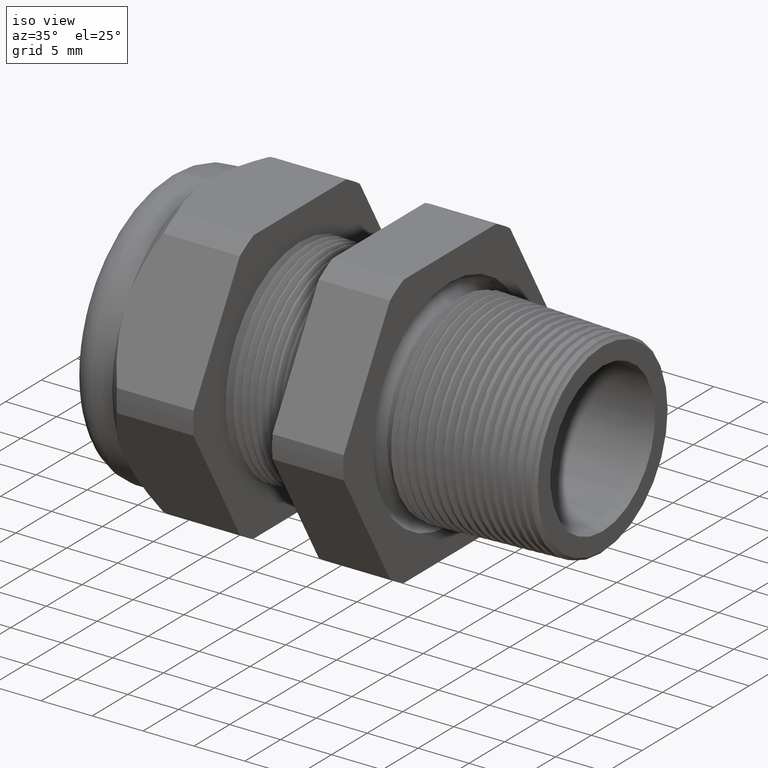
[diagram: clean part render]
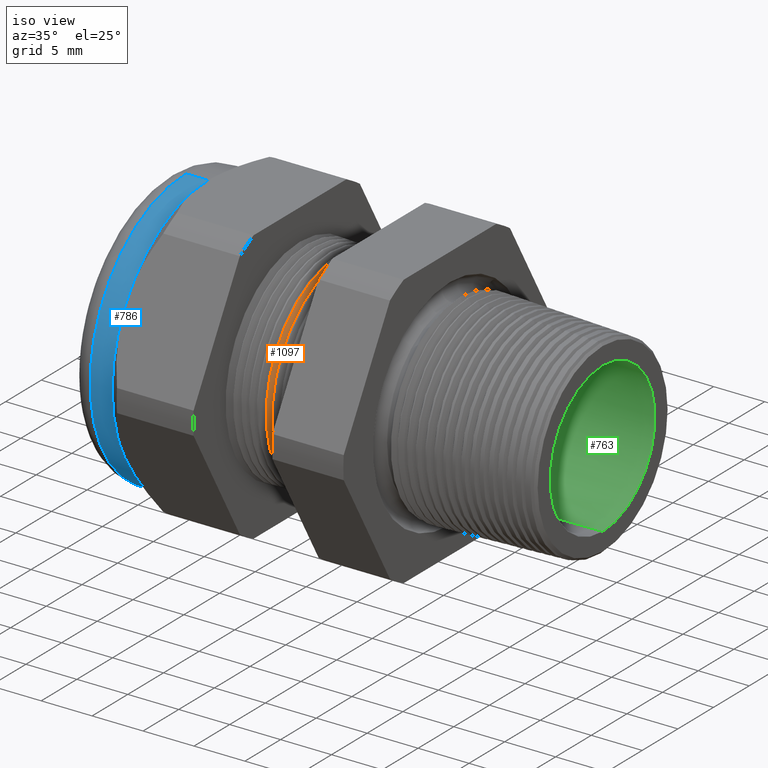
[diagram: same view with three faces highlighted in distinct colors, each labeled with its STEP entity id]
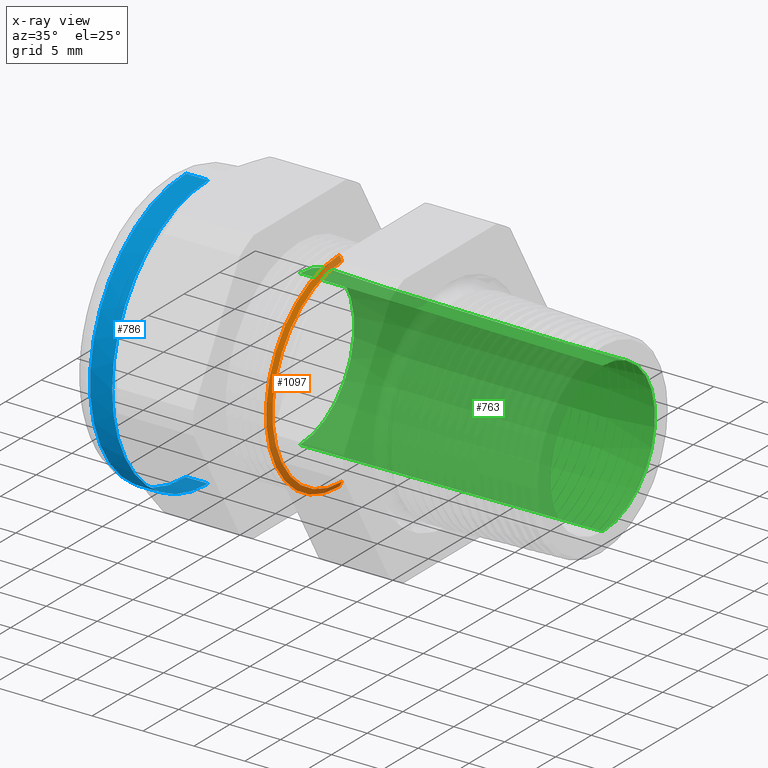
[diagram: x-ray of the same camera — body ghosted, the three highlighted faces saturated]
A machine part, iso view with three faces highlighted in distinct colors.
The next image is the same camera in x-ray (body ghosted, the three faces saturated) — at least one of them is partly hidden behind the body in this view.
Their STEP definitions:

[orange] entity #1097 — the highlighted conical surface has half-angle 62 deg.
#66 = VERTEX_POINT ( 'NONE', #2091 ) ;
#72 = EDGE_CURVE ( 'NONE', #1901, #73, #2086, .T. ) ;
#73 = VERTEX_POINT ( 'NONE', #2082 ) ;
#119 = EDGE_CURVE ( 'NONE', #1966, #66, #2178, .T. ) ;
#531 = EDGE_CURVE ( 'NONE', #66, #73, #2920, .T. ) ;
#1097 = ADVANCED_FACE ( 'NONE', ( #3938 ), #3933, .T. ) ;
#1098 = EDGE_LOOP ( 'NONE', ( #1099, #1100, #1102, #1103 ) ) ;
#1099 = ORIENTED_EDGE ( 'NONE', *, *, #72, .F. ) ;
#1100 = ORIENTED_EDGE ( 'NONE', *, *, #1101, .F. ) ;
#1101 = EDGE_CURVE ( 'NONE', #1966, #1901, #3927, .T. ) ;
#1102 = ORIENTED_EDGE ( 'NONE', *, *, #119, .T. ) ;
#1103 = ORIENTED_EDGE ( 'NONE', *, *, #531, .T. ) ;
#1901 = VERTEX_POINT ( 'NONE', #5338 ) ;
#1966 = VERTEX_POINT ( 'NONE', #5376 ) ;
#2082 = CARTESIAN_POINT ( 'NONE',  ( -0.7374771129433930200, 4.957090523884741100E-017, -0.4046627847513250600 ) ) ;
#2083 = DIRECTION ( 'NONE',  ( -0.4694715627859021900, 1.081298943409537900E-016, -0.8829475928589208800 ) ) ;
#2084 = VECTOR ( 'NONE', #2083, 39.37007874015748100 ) ;
#2085 = CARTESIAN_POINT ( 'NONE',  ( -0.7403149606299210800, 5.021051876504148100E-017, -0.4099999999999999800 ) ) ;
#2086 = LINE ( 'NONE', #2085, #2084 ) ;
#2091 = CARTESIAN_POINT ( 'NONE',  ( -0.7374771129433930200, 0.0000000000000000000, 0.4046627847513250600 ) ) ;
#2175 = DIRECTION ( 'NONE',  ( -0.4694715627859021900, 0.0000000000000000000, 0.8829475928589208800 ) ) ;
#2176 = VECTOR ( 'NONE', #2175, 39.37007874015748100 ) ;
#2177 = CARTESIAN_POINT ( 'NONE',  ( -0.7403149606299210800, 0.0000000000000000000, 0.4099999999999999800 ) ) ;
#2178 = LINE ( 'NONE', #2177, #2176 ) ;
#2917 = DIRECTION ( 'NONE',  ( 0.0000000000000000000, 0.0000000000000000000, 1.000000000000000000 ) ) ;
#2918 = DIRECTION ( 'NONE',  ( 1.000000000000000000, 0.0000000000000000000, 0.0000000000000000000 ) ) ;
#2919 = AXIS2_PLACEMENT_3D ( 'NONE', #2925, #2918, #2917 ) ;
#2920 = CIRCLE ( 'NONE', #2919, 0.4046627847513250600 ) ;
#2925 = CARTESIAN_POINT ( 'NONE',  ( -0.7374771129433930200, 0.0000000000000000000, 0.0000000000000000000 ) ) ;
#3924 = DIRECTION ( 'NONE',  ( 0.0000000000000000000, 0.0000000000000000000, -1.000000000000000000 ) ) ;
#3925 = DIRECTION ( 'NONE',  ( 1.000000000000000000, 0.0000000000000000000, 0.0000000000000000000 ) ) ;
#3926 = AXIS2_PLACEMENT_3D ( 'NONE', #3932, #3925, #3924 ) ;
#3927 = CIRCLE ( 'NONE', #3926, 0.3845114984791284100 ) ;
#3928 = DIRECTION ( 'NONE',  ( 0.0000000000000000000, 0.0000000000000000000, 1.000000000000000000 ) ) ;
#3929 = DIRECTION ( 'NONE',  ( -1.000000000000000000, 0.0000000000000000000, 0.0000000000000000000 ) ) ;
#3930 = CARTESIAN_POINT ( 'NONE',  ( -0.7403149606299210800, 0.0000000000000000000, 0.0000000000000000000 ) ) ;
#3931 = AXIS2_PLACEMENT_3D ( 'NONE', #3930, #3929, #3928 ) ;
#3932 = CARTESIAN_POINT ( 'NONE',  ( -0.7267624839723553200, 0.0000000000000000000, 0.0000000000000000000 ) ) ;
#3933 = CONICAL_SURFACE ( 'NONE', #3931, 0.4099999999999999800, 1.082104136236471400 ) ;
#3938 = FACE_OUTER_BOUND ( 'NONE', #1098, .T. ) ;
#5338 = CARTESIAN_POINT ( 'NONE',  ( -0.7267624839723553200, 4.832298799637908300E-017, -0.3845114984791284100 ) ) ;
#5376 = CARTESIAN_POINT ( 'NONE',  ( -0.7267624839723553200, 0.0000000000000000000, 0.3845114984791284100 ) ) ;

[blue] entity #786 — the highlighted cylindrical surface (partial cylindrical patch) has radius 13.462 mm, axis along (1, 0, 0).
#28 = EDGE_CURVE ( 'NONE', #5588, #32, #1983, .T. ) ;
#32 = VERTEX_POINT ( 'NONE', #1973 ) ;
#51 = VERTEX_POINT ( 'NONE', #2059 ) ;
#55 = EDGE_CURVE ( 'NONE', #5581, #51, #2054, .T. ) ;
#597 = VERTEX_POINT ( 'NONE', #3083 ) ;
#648 = VERTEX_POINT ( 'NONE', #3204 ) ;
#768 = ORIENTED_EDGE ( 'NONE', *, *, #769, .F. ) ;
#769 = EDGE_CURVE ( 'NONE', #648, #597, #3500, .T. ) ;
#770 = ORIENTED_EDGE ( 'NONE', *, *, #771, .F. ) ;
#771 = EDGE_CURVE ( 'NONE', #51, #648, #3495, .T. ) ;
#786 = ADVANCED_FACE ( 'NONE', ( #3529 ), #3522, .T. ) ;
#787 = EDGE_LOOP ( 'NONE', ( #788, #789, #791, #792, #768, #770 ) ) ;
#788 = ORIENTED_EDGE ( 'NONE', *, *, #55, .F. ) ;
#789 = ORIENTED_EDGE ( 'NONE', *, *, #790, .T. ) ;
#790 = EDGE_CURVE ( 'NONE', #5581, #5588, #3518, .T. ) ;
#791 = ORIENTED_EDGE ( 'NONE', *, *, #28, .T. ) ;
#792 = ORIENTED_EDGE ( 'NONE', *, *, #793, .F. ) ;
#793 = EDGE_CURVE ( 'NONE', #597, #32, #3514, .T. ) ;
#1973 = CARTESIAN_POINT ( 'NONE',  ( -1.244645669291338600, 0.0000000000000000000, -0.5300000000000001400 ) ) ;
#1980 = DIRECTION ( 'NONE',  ( 1.000000000000000000, 0.0000000000000000000, 0.0000000000000000000 ) ) ;
#1981 = VECTOR ( 'NONE', #1980, 39.37007874015748100 ) ;
#1982 = CARTESIAN_POINT ( 'NONE',  ( 0.0000000000000000000, 0.0000000000000000000, -0.5300000000000001400 ) ) ;
#1983 = LINE ( 'NONE', #1982, #1981 ) ;
#2051 = DIRECTION ( 'NONE',  ( 1.000000000000000000, 0.0000000000000000000, 0.0000000000000000000 ) ) ;
#2052 = VECTOR ( 'NONE', #2051, 39.37007874015748100 ) ;
#2053 = CARTESIAN_POINT ( 'NONE',  ( 0.0000000000000000000, 6.490628035480972400E-017, 0.5300000000000001400 ) ) ;
#2054 = LINE ( 'NONE', #2053, #2052 ) ;
#2059 = CARTESIAN_POINT ( 'NONE',  ( -1.244645669291338600, 0.0000000000000000000, 0.5300000000000001400 ) ) ;
#3083 = CARTESIAN_POINT ( 'NONE',  ( -1.244645669291338600, -0.4589934640057526900, -0.2650000000000002400 ) ) ;
#3204 = CARTESIAN_POINT ( 'NONE',  ( -1.244645669291338600, -0.4589934640057525800, 0.2649999999999999600 ) ) ;
#3491 = DIRECTION ( 'NONE',  ( 0.0000000000000000000, 0.0000000000000000000, -1.000000000000000000 ) ) ;
#3492 = DIRECTION ( 'NONE',  ( 1.000000000000000000, 0.0000000000000000000, 0.0000000000000000000 ) ) ;
#3493 = CARTESIAN_POINT ( 'NONE',  ( -1.244645669291338600, 0.0000000000000000000, 0.0000000000000000000 ) ) ;
#3494 = AXIS2_PLACEMENT_3D ( 'NONE', #3493, #3492, #3491 ) ;
#3495 = CIRCLE ( 'NONE', #3494, 0.5300000000000001400 ) ;
#3496 = DIRECTION ( 'NONE',  ( 0.0000000000000000000, 0.0000000000000000000, -1.000000000000000000 ) ) ;
#3497 = DIRECTION ( 'NONE',  ( 1.000000000000000000, 0.0000000000000000000, 0.0000000000000000000 ) ) ;
#3498 = CARTESIAN_POINT ( 'NONE',  ( -1.244645669291338600, 0.0000000000000000000, 0.0000000000000000000 ) ) ;
#3499 = AXIS2_PLACEMENT_3D ( 'NONE', #3498, #3497, #3496 ) ;
#3500 = CIRCLE ( 'NONE', #3499, 0.5300000000000001400 ) ;
#3510 = DIRECTION ( 'NONE',  ( 0.0000000000000000000, 0.0000000000000000000, -1.000000000000000000 ) ) ;
#3511 = DIRECTION ( 'NONE',  ( 1.000000000000000000, 0.0000000000000000000, 0.0000000000000000000 ) ) ;
#3512 = CARTESIAN_POINT ( 'NONE',  ( -1.244645669291338600, 0.0000000000000000000, 0.0000000000000000000 ) ) ;
#3513 = AXIS2_PLACEMENT_3D ( 'NONE', #3512, #3511, #3510 ) ;
#3514 = CIRCLE ( 'NONE', #3513, 0.5300000000000001400 ) ;
#3515 = DIRECTION ( 'NONE',  ( 0.0000000000000000000, 0.0000000000000000000, 1.000000000000000000 ) ) ;
#3516 = DIRECTION ( 'NONE',  ( 1.000000000000000000, 0.0000000000000000000, 0.0000000000000000000 ) ) ;
#3517 = AXIS2_PLACEMENT_3D ( 'NONE', #3523, #3516, #3515 ) ;
#3518 = CIRCLE ( 'NONE', #3517, 0.5300000000000001400 ) ;
#3519 = DIRECTION ( 'NONE',  ( 0.0000000000000000000, 0.0000000000000000000, -1.000000000000000000 ) ) ;
#3520 = DIRECTION ( 'NONE',  ( 1.000000000000000000, 0.0000000000000000000, 0.0000000000000000000 ) ) ;
#3521 = AXIS2_PLACEMENT_3D ( 'NONE', #3524, #3520, #3519 ) ;
#3522 = CYLINDRICAL_SURFACE ( 'NONE', #3521, 0.5300000000000001400 ) ;
#3523 = CARTESIAN_POINT ( 'NONE',  ( -1.330000000000000100, 0.0000000000000000000, 0.0000000000000000000 ) ) ;
#3524 = CARTESIAN_POINT ( 'NONE',  ( 0.0000000000000000000, 0.0000000000000000000, 0.0000000000000000000 ) ) ;
#3529 = FACE_OUTER_BOUND ( 'NONE', #787, .T. ) ;
#5452 = CARTESIAN_POINT ( 'NONE',  ( -1.330000000000000100, 0.0000000000000000000, -0.5300000000000001400 ) ) ;
#5463 = CARTESIAN_POINT ( 'NONE',  ( -1.330000000000000100, 6.490628035480972400E-017, 0.5300000000000001400 ) ) ;
#5581 = VERTEX_POINT ( 'NONE', #5463 ) ;
#5588 = VERTEX_POINT ( 'NONE', #5452 ) ;

[green] entity #763 — the highlighted conical surface has half-angle 0.532 deg.
#34 = EDGE_CURVE ( 'NONE', #5591, #38, #2030, .T. ) ;
#38 = VERTEX_POINT ( 'NONE', #2020 ) ;
#43 = VERTEX_POINT ( 'NONE', #2014 ) ;
#44 = EDGE_CURVE ( 'NONE', #47, #43, #2013, .T. ) ;
#47 = VERTEX_POINT ( 'NONE', #2008 ) ;
#762 = EDGE_CURVE ( 'NONE', #43, #38, #3450, .T. ) ;
#763 = ADVANCED_FACE ( 'NONE', ( #3446 ), #3445, .F. ) ;
#764 = EDGE_LOOP ( 'NONE', ( #765, #766, #824, #825 ) ) ;
#765 = ORIENTED_EDGE ( 'NONE', *, *, #44, .F. ) ;
#766 = ORIENTED_EDGE ( 'NONE', *, *, #767, .T. ) ;
#767 = EDGE_CURVE ( 'NONE', #47, #5591, #3444, .T. ) ;
#824 = ORIENTED_EDGE ( 'NONE', *, *, #34, .T. ) ;
#825 = ORIENTED_EDGE ( 'NONE', *, *, #762, .F. ) ;
#2008 = CARTESIAN_POINT ( 'NONE',  ( 0.2800000000000000300, 3.607391259695410300E-017, -0.2891317010271070600 ) ) ;
#2010 = DIRECTION ( 'NONE',  ( -0.9999568819060354900, 1.137236906530796700E-018, -0.009286244060920954800 ) ) ;
#2011 = VECTOR ( 'NONE', #2010, 39.37007874015748100 ) ;
#2012 = CARTESIAN_POINT ( 'NONE',  ( -0.8903149606299211000, 3.673940397442058900E-017, -0.2999999999999999900 ) ) ;
#2013 = LINE ( 'NONE', #2012, #2011 ) ;
#2014 = CARTESIAN_POINT ( 'NONE',  ( -0.8903149606299211000, 0.0000000000000000000, -0.2999999999999999900 ) ) ;
#2020 = CARTESIAN_POINT ( 'NONE',  ( -0.8903149606299211000, 3.673940397442058900E-017, 0.2999999999999999900 ) ) ;
#2027 = DIRECTION ( 'NONE',  ( -0.9999568819060354900, 0.0000000000000000000, 0.009286244060920954800 ) ) ;
#2028 = VECTOR ( 'NONE', #2027, 39.37007874015748100 ) ;
#2029 = CARTESIAN_POINT ( 'NONE',  ( -0.8903149606299211000, 0.0000000000000000000, 0.2999999999999999900 ) ) ;
#2030 = LINE ( 'NONE', #2029, #2028 ) ;
#3436 = DIRECTION ( 'NONE',  ( 0.0000000000000000000, 0.0000000000000000000, -1.000000000000000000 ) ) ;
#3437 = DIRECTION ( 'NONE',  ( 1.000000000000000000, 0.0000000000000000000, 0.0000000000000000000 ) ) ;
#3438 = CARTESIAN_POINT ( 'NONE',  ( 0.2800000000000000300, 0.0000000000000000000, 0.0000000000000000000 ) ) ;
#3439 = AXIS2_PLACEMENT_3D ( 'NONE', #3438, #3437, #3436 ) ;
#3440 = DIRECTION ( 'NONE',  ( 0.0000000000000000000, 0.0000000000000000000, 1.000000000000000000 ) ) ;
#3441 = DIRECTION ( 'NONE',  ( -1.000000000000000000, 0.0000000000000000000, 0.0000000000000000000 ) ) ;
#3442 = CARTESIAN_POINT ( 'NONE',  ( -0.8903149606299211000, 0.0000000000000000000, 0.0000000000000000000 ) ) ;
#3443 = AXIS2_PLACEMENT_3D ( 'NONE', #3442, #3441, #3440 ) ;
#3444 = CIRCLE ( 'NONE', #3439, 0.2891317010271070600 ) ;
#3445 = CONICAL_SURFACE ( 'NONE', #3443, 0.2999999999999999900, 0.009286377531604290300 ) ;
#3446 = FACE_OUTER_BOUND ( 'NONE', #764, .T. ) ;
#3447 = DIRECTION ( 'NONE',  ( 0.0000000000000000000, 0.0000000000000000000, -1.000000000000000000 ) ) ;
#3448 = DIRECTION ( 'NONE',  ( 1.000000000000000000, 0.0000000000000000000, 0.0000000000000000000 ) ) ;
#3449 = AXIS2_PLACEMENT_3D ( 'NONE', #3455, #3448, #3447 ) ;
#3450 = CIRCLE ( 'NONE', #3449, 0.2999999999999999900 ) ;
#3455 = CARTESIAN_POINT ( 'NONE',  ( -0.8903149606299211000, 0.0000000000000000000, 0.0000000000000000000 ) ) ;
#5445 = CARTESIAN_POINT ( 'NONE',  ( 0.2800000000000000300, 0.0000000000000000000, 0.2891317010271070600 ) ) ;
#5591 = VERTEX_POINT ( 'NONE', #5445 ) ;